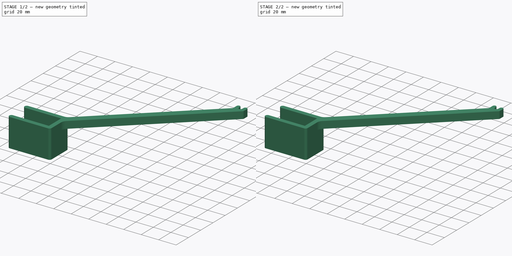
[diagram: build sequence overview — one tinted view per stage of 2, left to right]
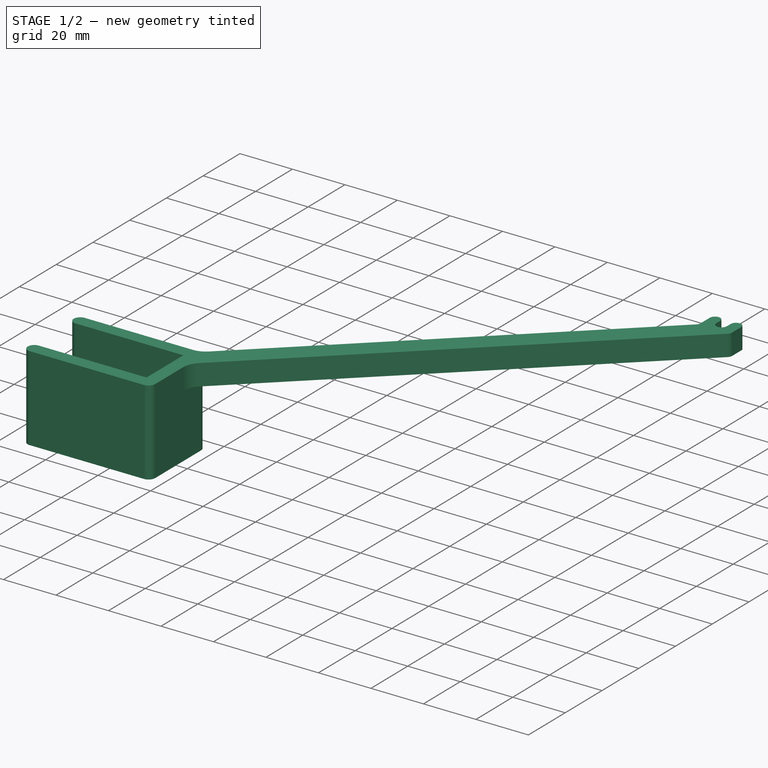
[diagram: stage 1 of 2 — iso view after this stage's code; geometry added in this stage tinted green]
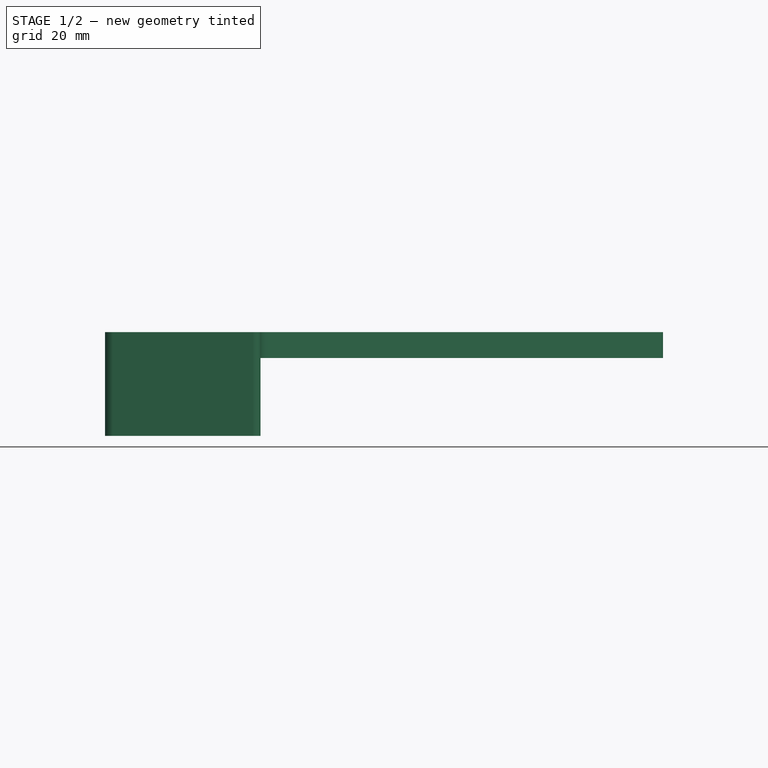
[diagram: stage 1 of 2 — front view after this stage's code; geometry added in this stage tinted green]
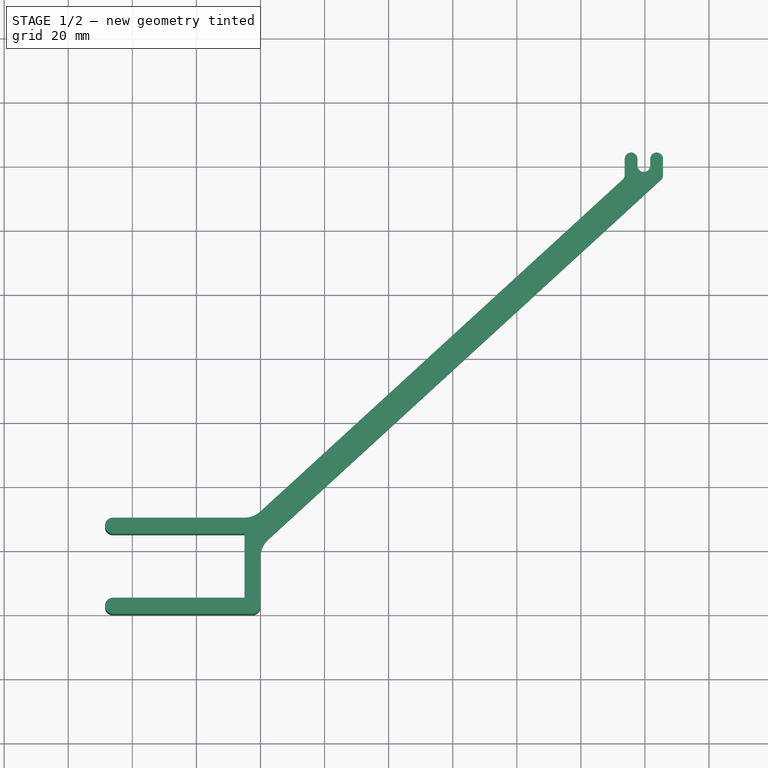
[diagram: stage 1 of 2 — top view after this stage's code; geometry added in this stage tinted green]
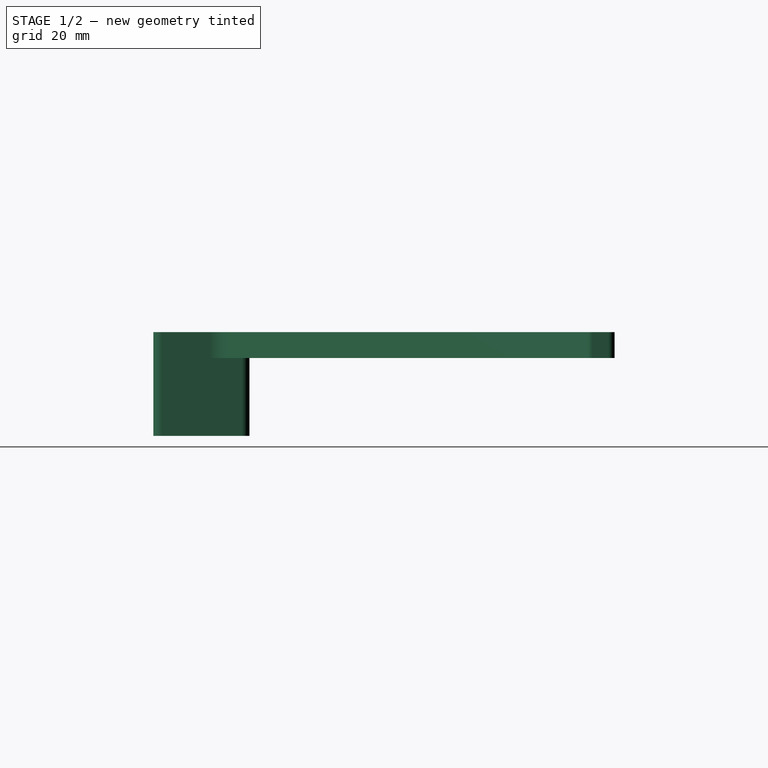
[diagram: stage 1 of 2 — right view after this stage's code; geometry added in this stage tinted green]
FCSTD DOCUMENT  (FreeCAD 0.18R16093 (Git))
Label: minzehalter
License: All rights reserved
LicenseURL: http://en.wikipedia.org/wiki/All_rights_reserved
objects: Sketcher::SketchObject×2, Part::Extrusion×2, PartDesign::Body×1, Part::MultiFuse×1
note: 6 computed .brp shape members not serialized (recipe doc carries the construction recipe); baked Part::Feature solids carry a one-line shape summary decoded from their .brp

FEATURE [Sketcher::SketchObject] Sketch
  MapMode = 5
  Support = -> [XY_Plane]
  sketch-geometry (22):
    g0: LineSegment StartX=-46.04 StartY=25 StartZ=0 EndX=-5 EndY=25 EndZ=0
    g1: LineSegment StartX=-5 StartY=25 StartZ=0 EndX=-5 EndY=5 EndZ=0
    g2: LineSegment StartX=-5 StartY=5 StartZ=0 EndX=-46.04 EndY=5 EndZ=0
    g3: ArcOfCircle CenterX=-46.04 CenterY=2.5 CenterZ=0 NormalX=0 NormalY=0 NormalZ=1 AngleXU=0 Radius=2.5 StartAngle=1.5708 EndAngle=4.71239
    g4: ArcOfCircle CenterX=-46.04 CenterY=27.5 CenterZ=0 NormalX=0 NormalY=0 NormalZ=1 AngleXU=0 Radius=2.5 StartAngle=1.5708 EndAngle=4.71239
    g5: LineSegment StartX=-46.04 StartY=30 StartZ=0 EndX=-5 EndY=30 EndZ=0
    g6: ArcOfCircle CenterX=-5 CenterY=37.4009 CenterZ=0 NormalX=0 NormalY=0 NormalZ=1 AngleXU=0 Radius=7.40094 StartAngle=4.71239 EndAngle=5.45415
    g7: LineSegment StartX=0 StartY=31.9444 StartZ=0 EndX=113.025 EndY=135.513 EndZ=0
    g8: LineSegment StartX=0 StartY=17.7151 StartZ=0 EndX=0 EndY=2.5 EndZ=0
    g9: LineSegment StartX=-46.04 StartY=0 StartZ=0 EndX=-2.5 EndY=0 EndZ=0
    g10: ArcOfCircle CenterX=-2.5 CenterY=2.5 CenterZ=0 NormalX=0 NormalY=0 NormalZ=1 AngleXU=0 Radius=2.5 StartAngle=4.71239 EndAngle=6.28319
    g11: LineSegment StartX=2.40094 StartY=23.1716 StartZ=0 EndX=125 EndY=135.513 EndZ=0
    g12: ArcOfCircle CenterX=7.40094 CenterY=17.7151 CenterZ=0 NormalX=0 NormalY=0 NormalZ=1 AngleXU=0 Radius=7.40094 StartAngle=2.31256 EndAngle=3.14159
    g13: ArcOfCircle CenterX=123.652 CenterY=136.984 CenterZ=0 NormalX=0 NormalY=0 NormalZ=1 AngleXU=0 Radius=1.99579 StartAngle=5.45415 EndAngle=6.28319
    g14: LineSegment StartX=125.647 StartY=136.984 StartZ=0 EndX=125.647 EndY=141.966 EndZ=0
    g15: LineSegment StartX=121.656 StartY=141.966 StartZ=0 EndX=121.656 EndY=139.903 EndZ=0
    g16: LineSegment StartX=117.664 StartY=139.903 StartZ=0 EndX=117.664 EndY=141.966 EndZ=0
    g17: LineSegment StartX=113.673 StartY=141.966 StartZ=0 EndX=113.673 EndY=136.984 EndZ=0
    g18: ArcOfCircle CenterX=111.677 CenterY=136.984 CenterZ=0 NormalX=0 NormalY=0 NormalZ=1 AngleXU=0 Radius=1.99579 StartAngle=5.45415 EndAngle=6.28319
    g19: ArcOfCircle CenterX=115.669 CenterY=141.966 CenterZ=0 NormalX=0 NormalY=0 NormalZ=1 AngleXU=0 Radius=1.99579 StartAngle=-4.4e-15 EndAngle=3.14159
    g20: ArcOfCircle CenterX=119.66 CenterY=139.903 CenterZ=0 NormalX=0 NormalY=0 NormalZ=1 AngleXU=0 Radius=1.99579 StartAngle=3.14159 EndAngle=6.28319
    g21: ArcOfCircle CenterX=123.652 CenterY=141.966 CenterZ=0 NormalX=0 NormalY=0 NormalZ=1 AngleXU=0 Radius=1.99579 StartAngle=-6.2e-15 EndAngle=3.14159
  constraints (54):
    c: Horizontal(g0)
    c: Coincident(g1,g0)
    c: Vertical(g1)
    c: Coincident(g2,g1)
    c: Horizontal(g5)
    c: Angle(g7,g5) = 2.39983
    c: Tangent(g6,g5) = -1.5708
    c: Tangent(g7,g6) = -1.5708
    c: Tangent(g5,g4) = 1.5708
    c: Tangent(g4,g0) = -1.5708
    c: Vertical(g8)
    c: Horizontal(g9)
    c: Tangent(g3,g2) = -1.5708
    c: Tangent(g9,g3) = -1.5708
    c: Radius(g3) = 2.5
    c: DistanceY(g1,g1) = 20
    c: Equal(g4,g3)
    c: Vertical(g4,g3)
    c: Horizontal(g9,g-1)
    c: Horizontal(g2)
    c: Tangent(g10,g8) = 1.5708
    c: Tangent(g10,g9) = -1.5708
    c: Vertical(g8,g-1)
    c: Equal(g3,g10)
    c: DistanceX(g1,g8) = 5
    c: DistanceX(g3,g8) = 46.04
    c: Tangent(g12,g11) = 1.5708
    c: Tangent(g12,g8) = -1.5708
    c: Parallel(g11,g7)
    c: Distance(g11,g7) = 8.09
    c: Equal(g12,g6)
    c: Tangent(g11,g13) = -1.5708
    c: DistanceX(g0,g11) = 130
    c: Vertical(g5,g0)
    c: Vertical(g6,g8)
    c: Vertical(g14)
    c: Vertical(g15)
    c: Vertical(g16)
    c: Vertical(g17)
    c: Tangent(g14,g13) = -1.5708
    c: Tangent(g21,g14) = -1.5708
    c: Tangent(g21,g15) = -1.5708
    c: Tangent(g15,g20) = 1.5708
    c: Tangent(g16,g20) = 1.5708
    c: Tangent(g19,g17) = -1.5708
    c: Tangent(g19,g16) = -1.5708
    c: Tangent(g17,g18) = 1.5708
    c: Tangent(g18,g7) = -1.5708
    c: Horizontal(g19,g21)
    c: Equal(g19,g20)
    c: Equal(g20,g21)
    c: Equal(g18,g13)
    c: Horizontal(g17,g13)
    c: Equal(g18,g19)
FEATURE [Sketcher::SketchObject] Sketch001
  MapMode = 5
  Support = -> [XY_Plane]
  sketch-geometry (10):
    g0: LineSegment StartX=-46.04 StartY=25 StartZ=0 EndX=-5 EndY=25 EndZ=0
    g1: LineSegment StartX=-5 StartY=25 StartZ=0 EndX=-5 EndY=5 EndZ=0
    g2: LineSegment StartX=-5 StartY=5 StartZ=0 EndX=-46.04 EndY=5 EndZ=0
    g3: ArcOfCircle CenterX=-46.04 CenterY=2.5 CenterZ=0 NormalX=0 NormalY=0 NormalZ=1 AngleXU=0 Radius=2.5 StartAngle=1.5708 EndAngle=4.71239
    g4: ArcOfCircle CenterX=-46.04 CenterY=27.5 CenterZ=0 NormalX=0 NormalY=0 NormalZ=1 AngleXU=0 Radius=2.5 StartAngle=1.5708 EndAngle=4.71239
    g5: LineSegment StartX=-46.04 StartY=30 StartZ=0 EndX=-2.5 EndY=30 EndZ=0
    g6: LineSegment StartX=0 StartY=27.5 StartZ=0 EndX=0 EndY=2.5 EndZ=0
    g7: LineSegment StartX=-46.04 StartY=0 StartZ=0 EndX=-2.5 EndY=0 EndZ=0
    g8: ArcOfCircle CenterX=-2.5 CenterY=2.5 CenterZ=0 NormalX=0 NormalY=0 NormalZ=1 AngleXU=0 Radius=2.5 StartAngle=4.71239 EndAngle=6.28319
    g9: ArcOfCircle CenterX=-2.5 CenterY=27.5 CenterZ=0 NormalX=0 NormalY=0 NormalZ=1 AngleXU=0 Radius=2.5 StartAngle=8e-16 EndAngle=1.5708
  constraints (26):
    c: Horizontal(g0)
    c: Coincident(g1,g0)
    c: Vertical(g1)
    c: Coincident(g2,g1)
    c: Horizontal(g5)
    c: Tangent(g5,g4) = 1.5708
    c: Tangent(g4,g0) = -1.5708
    c: Vertical(g6)
    c: Horizontal(g7)
    c: Tangent(g3,g2) = -1.5708
    c: Tangent(g7,g3) = -1.5708
    c: Radius(g3) = 2.5
    c: DistanceY(g1,g1) = 20
    c: Equal(g4,g3)
    c: Vertical(g4,g3)
    c: Horizontal(g7,g-1)
    c: Horizontal(g2)
    c: Tangent(g8,g6) = 1.5708
    c: Tangent(g8,g7) = -1.5708
    c: Vertical(g6,g-1)
    c: Equal(g3,g8)
    c: DistanceX(g1,g6) = 5
    c: DistanceX(g3,g6) = 46.04
    c: Tangent(g9,g5) = 1.5708
    c: Tangent(g9,g6) = 1.5708
    c: Equal(g9,g8)
FEATURE [PartDesign::Body] Body
  Group = -> [Sketch,Sketch001]
  Origin = -> Origin
FEATURE [Part::Extrusion] Extrude
  Base = -> Sketch
  Dir = (0,0,1)
  DirMode = 2
  FaceMakerClass = Part::FaceMakerBullseye
  LengthFwd = 0
  LengthRev = 8.06
  Solid = true
  Symmetric = false
FEATURE [Part::Extrusion] Extrude001
  Base = -> Sketch001
  Dir = (0,0,1)
  DirMode = 2
  FaceMakerClass = Part::FaceMakerBullseye
  LengthFwd = 0
  LengthRev = 32.36
  Solid = true
  Symmetric = false
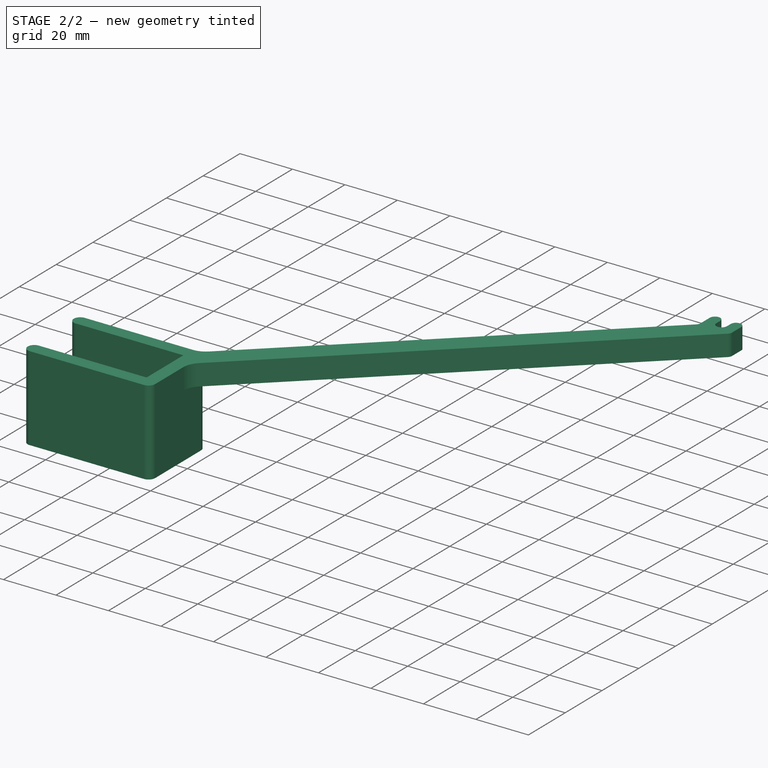
[diagram: stage 2 of 2 — iso view after this stage's code; geometry added in this stage tinted green]
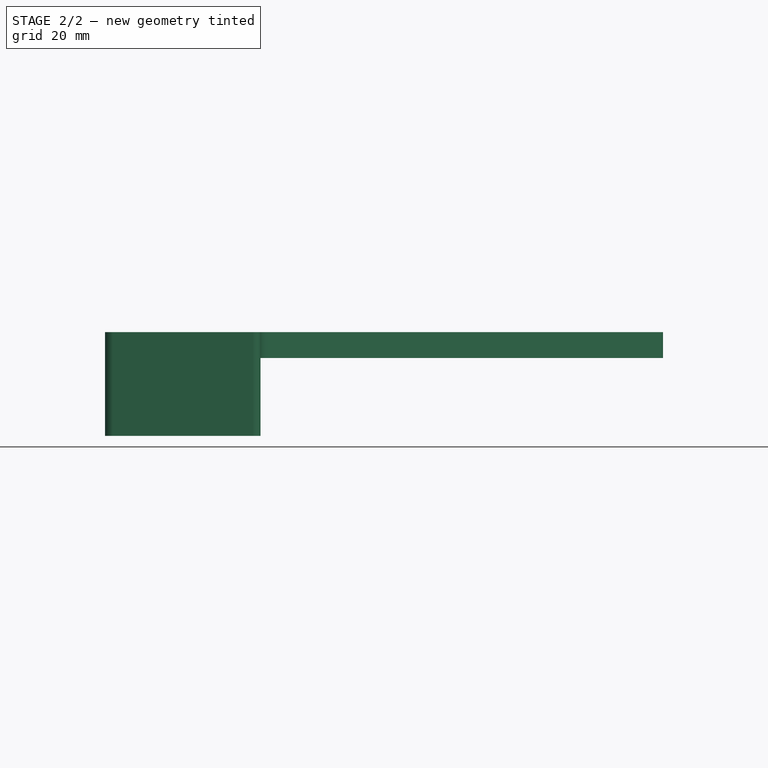
[diagram: stage 2 of 2 — front view after this stage's code; geometry added in this stage tinted green]
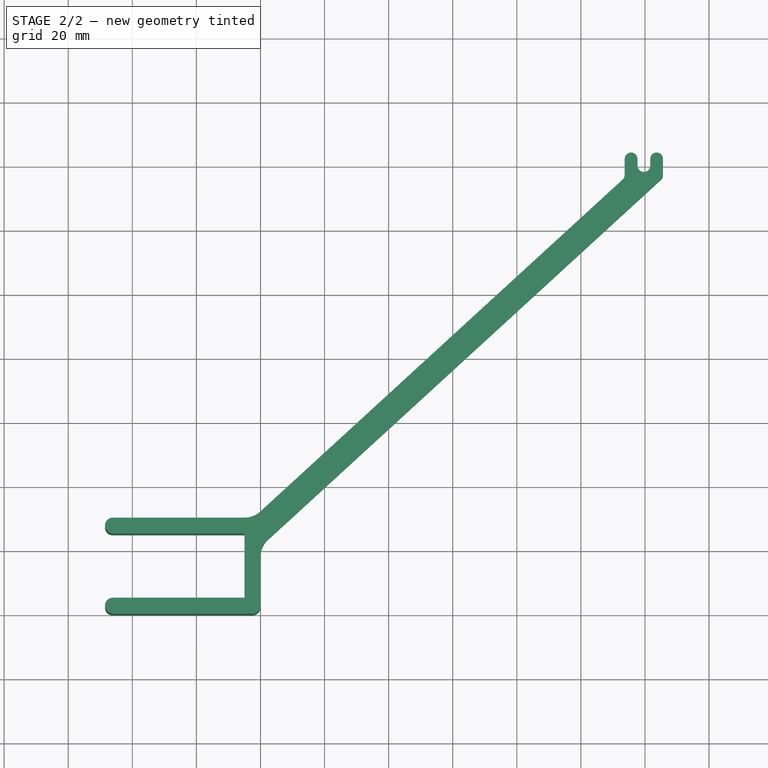
[diagram: stage 2 of 2 — top view after this stage's code; geometry added in this stage tinted green]
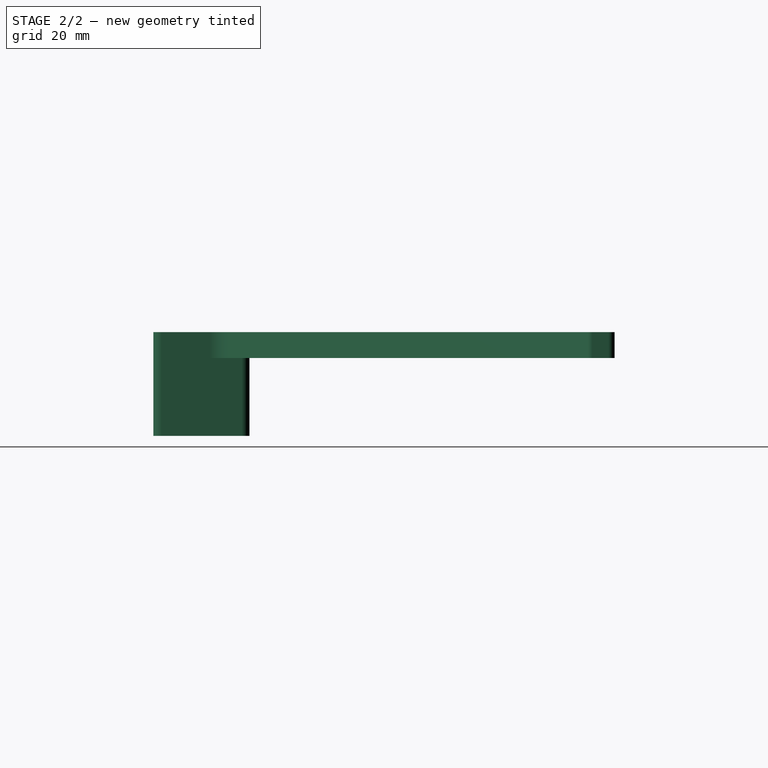
[diagram: stage 2 of 2 — right view after this stage's code; geometry added in this stage tinted green]
FEATURE [Part::MultiFuse] Fusion
  Shapes = -> [Extrude,Extrude001]
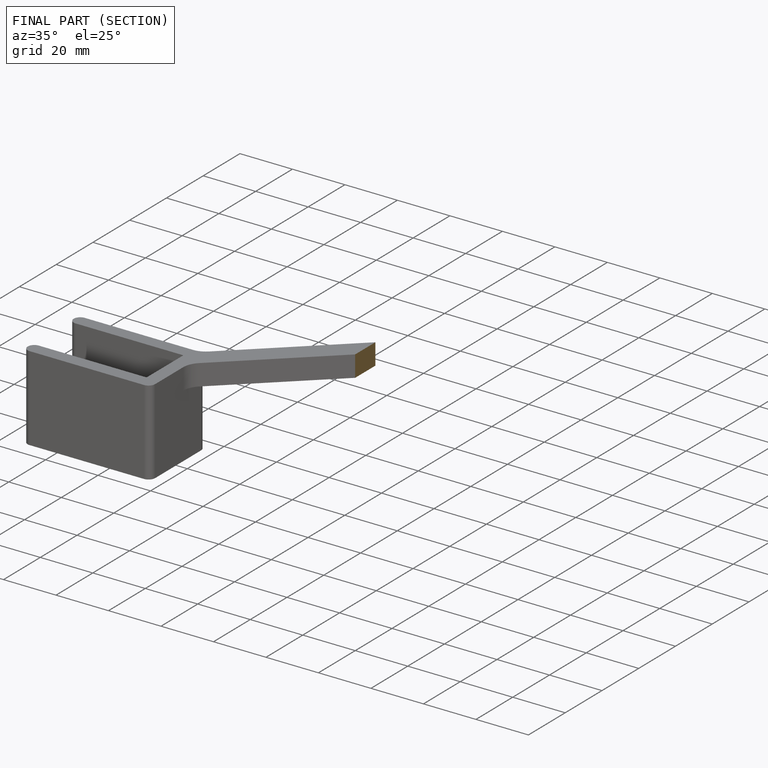
[diagram: finished part — half-section view (interior)]
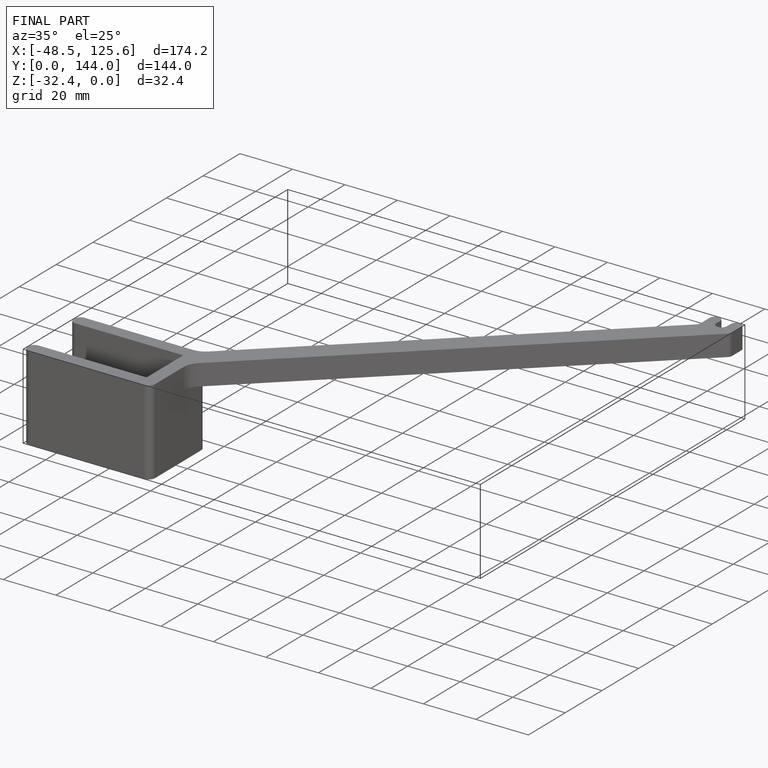
[diagram: finished part — iso view with bounding-box wireframe]
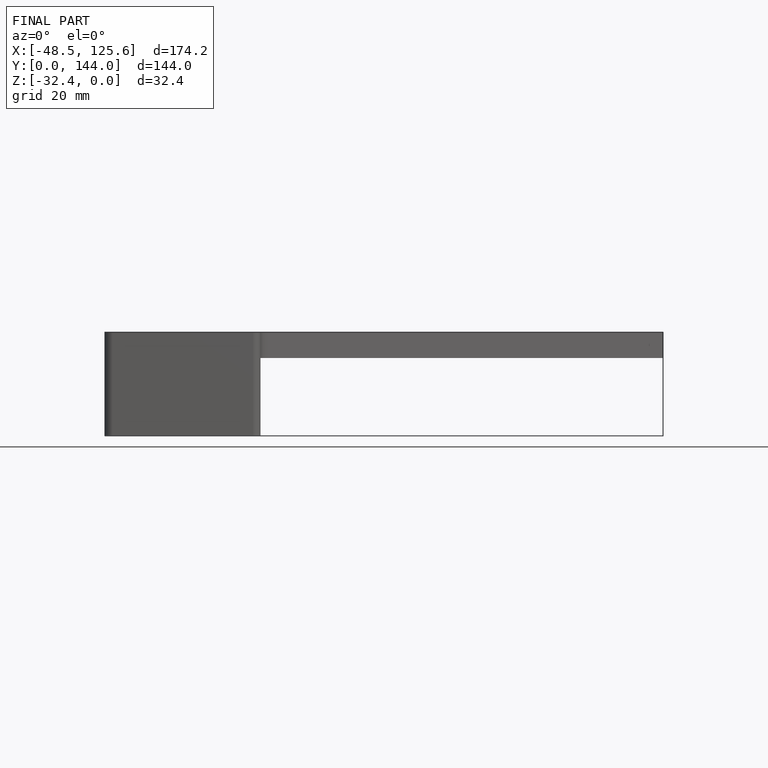
[diagram: finished part — front view with bounding-box wireframe]
